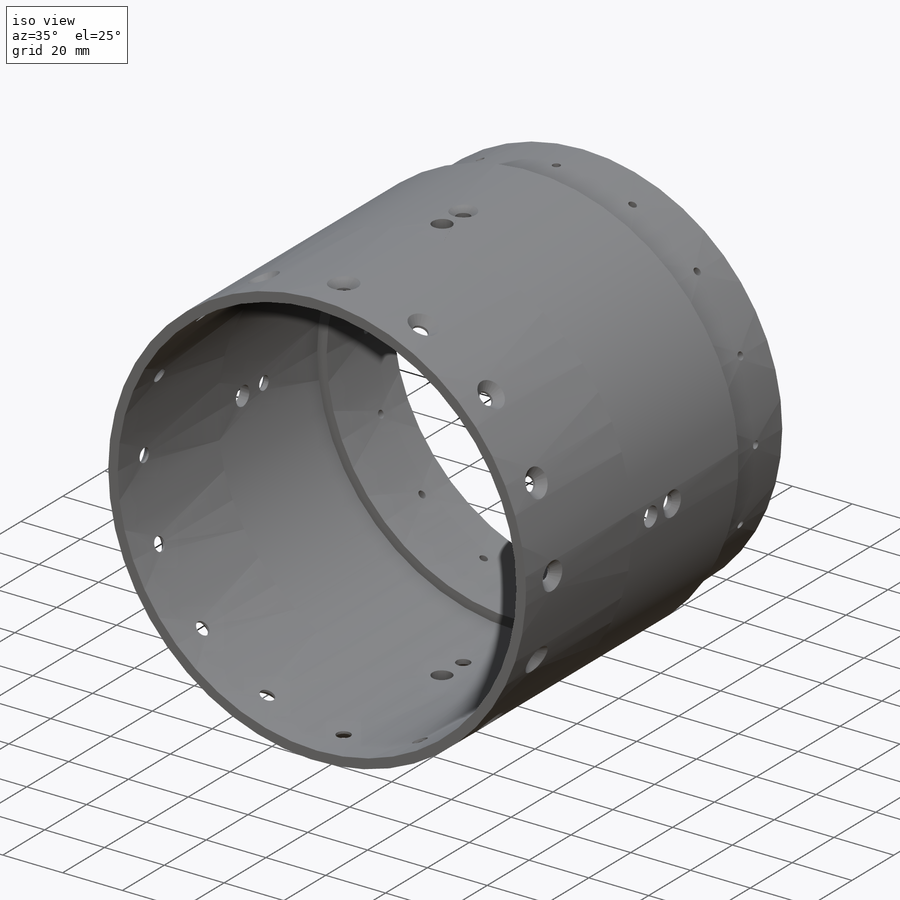
[diagram: iso view]
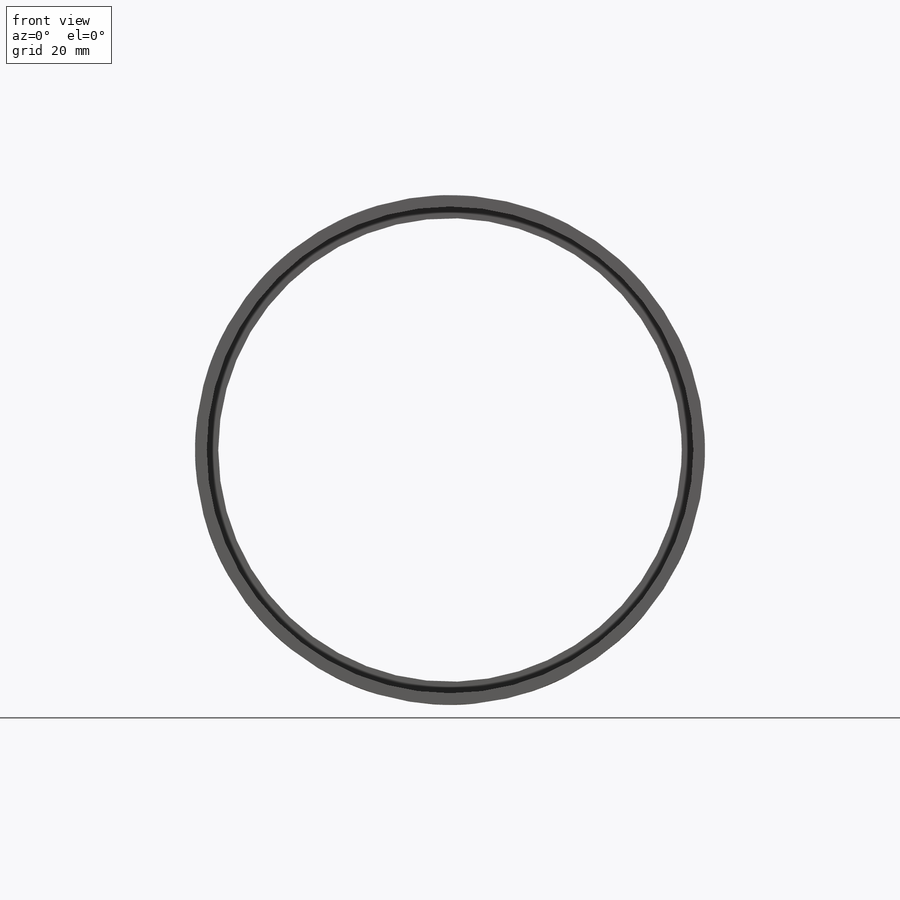
[diagram: front view]
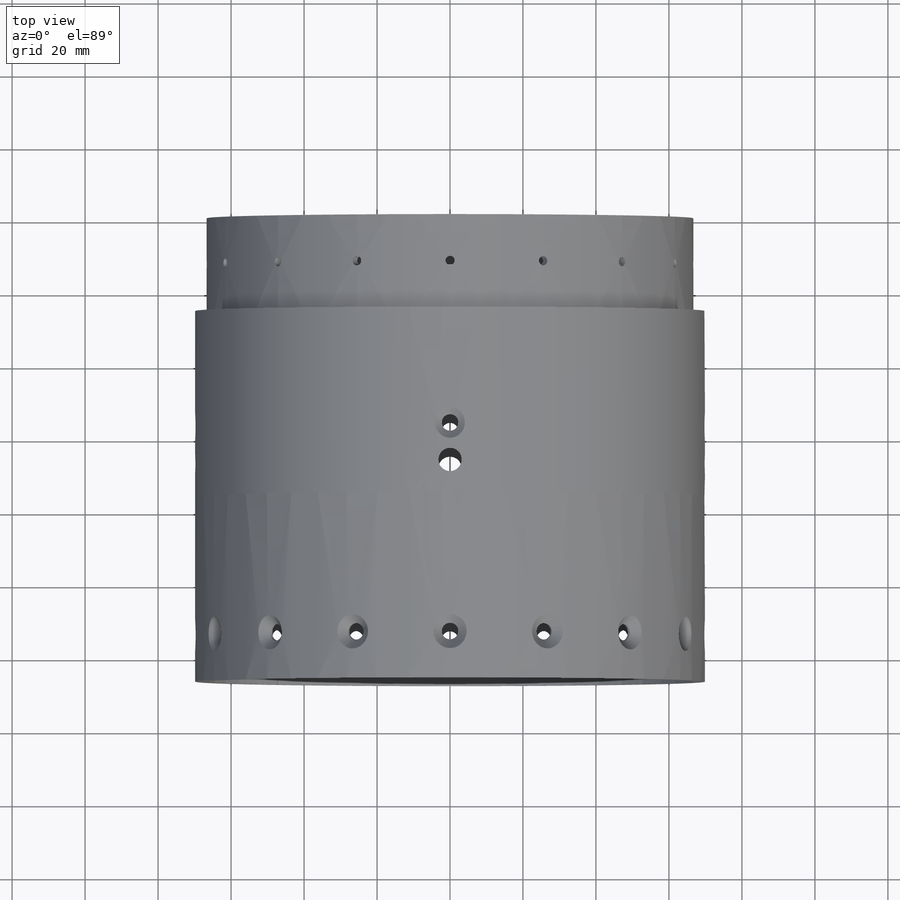
[diagram: top view]
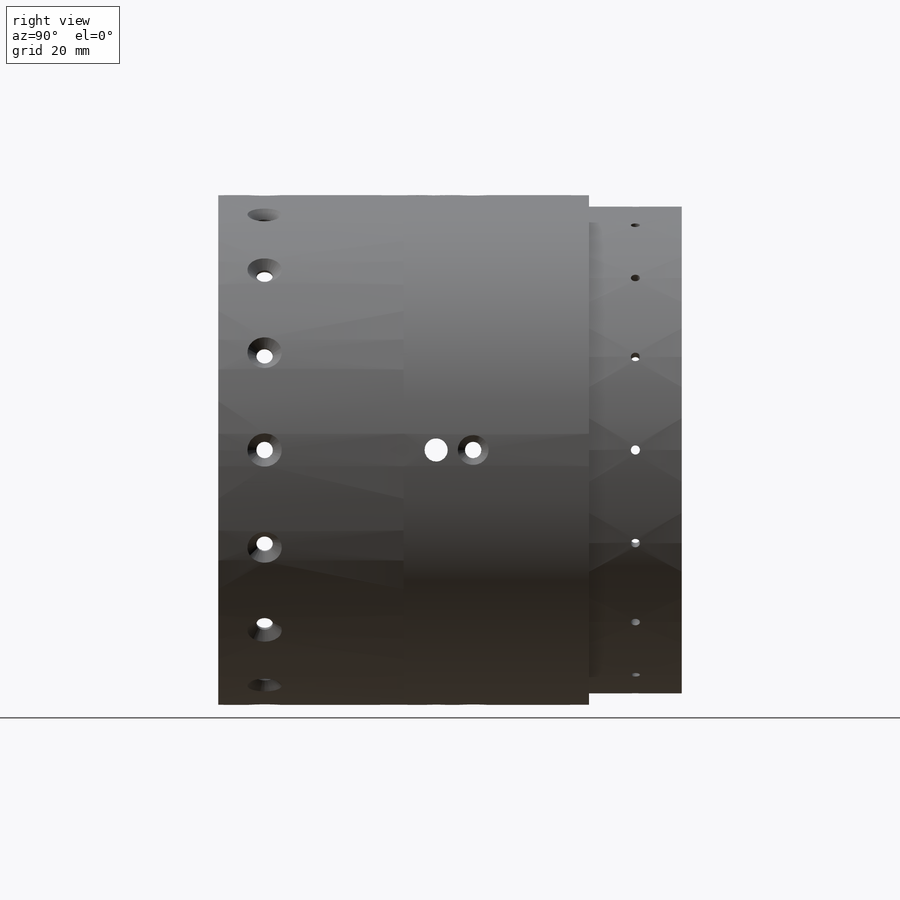
[diagram: right view]
SOLIDWORKS PART (.sldprt)
format: sldprt  version: not decoded by parser v0  size: 514,560 bytes
history: native  units: mm
features: sketch x15, plane x6, hole x4, cut_extrude x2, pattern_circular x2, material x1, extrude x1 (+16 scaffold rows collapsed)
feature tree (47):
  scaffold x16  (default folders/planes/origin — collapsed)
  material  "Material <not specified>"
  sketch  "Sketch1"  dims[D1=139.7mm]
  extrude  "Extrude1"  Depth=127mm
  sketch  "Sketch4"  dims[D1=~66.487617mm]
  cut_extrude  "Extrude2"  Depth=25.4mm
  sketch  "Sketch5"  dims[D1=~66.499861mm]
  cut_extrude  "Extrude3"  Depth=95.25mm
  plane  "Plane1"  Offset=12.7mm
  sketch  "Sketch6"
  plane  "Plane2"
  hole  "#40 (0.098) Diameter Hole2"  Diameter=2.4892mm Depth=12.7mm
  sketch  "Sketch10"
  sketch  "Sketch9"  dims[hole-wizard template sketch: 46 standard entries collapsed; hole parameters kept: c15.Hole Dia.=2.4892mm c15.Hole Depth=12.7mm c15.D3=~14.816244mm c15.Drill Angle=118.0deg]
  plane  "Plane3"  Offset=12.7mm
  sketch  "Sketch11"
  plane  "Plane4"
  hole  "CSK for M4 Flat Head Machine Screw1"  Diameter=4.5mm Depth=12.192mm
  sketch  "Sketch13"
  sketch  "Sketch12"  dims[hole-wizard template sketch: 39 standard entries collapsed; hole parameters kept: c13.Hole Dia.=4.5mm c13.Hole Depth=12.192mm c13.Near C'Sink Dia.=9.4mm c13.D4=~33.297463mm c13.Near C'Sink Angle=90.0deg c14.D5=~14.816244mm c14.Drill Angle=118.0deg]
  pattern_circular  "CirPattern1"  Count=16 Angle=360deg
  plane  "Plane5"  Offset=35.56mm
  sketch  "Sketch14"
  plane  "Plane6"
  sketch  "Sketch15"  dims[D1=10.16mm]
  hole  "E (0.25) Diameter Hole2"  Diameter=6.35mm Depth=12.7mm
  sketch  "Sketch18"
  sketch  "Sketch17"  dims[hole-wizard template sketch: 47 standard entries collapsed; hole parameters kept: c15.Hole Depth=12.7mm c15.D3=~14.816244mm c15.Drill Angle=118.0deg]
  hole  "CSK for #8 Flat Head Machine Screw (100)2"  Diameter=4.4958mm Depth=12.192mm
  sketch  "Sketch21"
  sketch  "Sketch22"  dims[hole-wizard template sketch: 39 standard entries collapsed; hole parameters kept: c13.Hole Dia.=4.4958mm c13.Hole Depth=12.192mm c13.Near C'Sink Dia.=8.4328mm c13.D4=~33.297463mm c13.Near C'Sink Angle=100.0deg c14.D5=~14.816244mm c14.Drill Angle=118.0deg]
  pattern_circular  "CirPattern2"  Count=4 Angle=360deg
decode coverage: 17 of 24 modeling features carry decoded parameters
note: ~ marks probable driven/reference dimensions
summary: Diameter pulled from absorbed wizard sketch
note: suppression state not decoded; provenance and decode notes live in map.json
